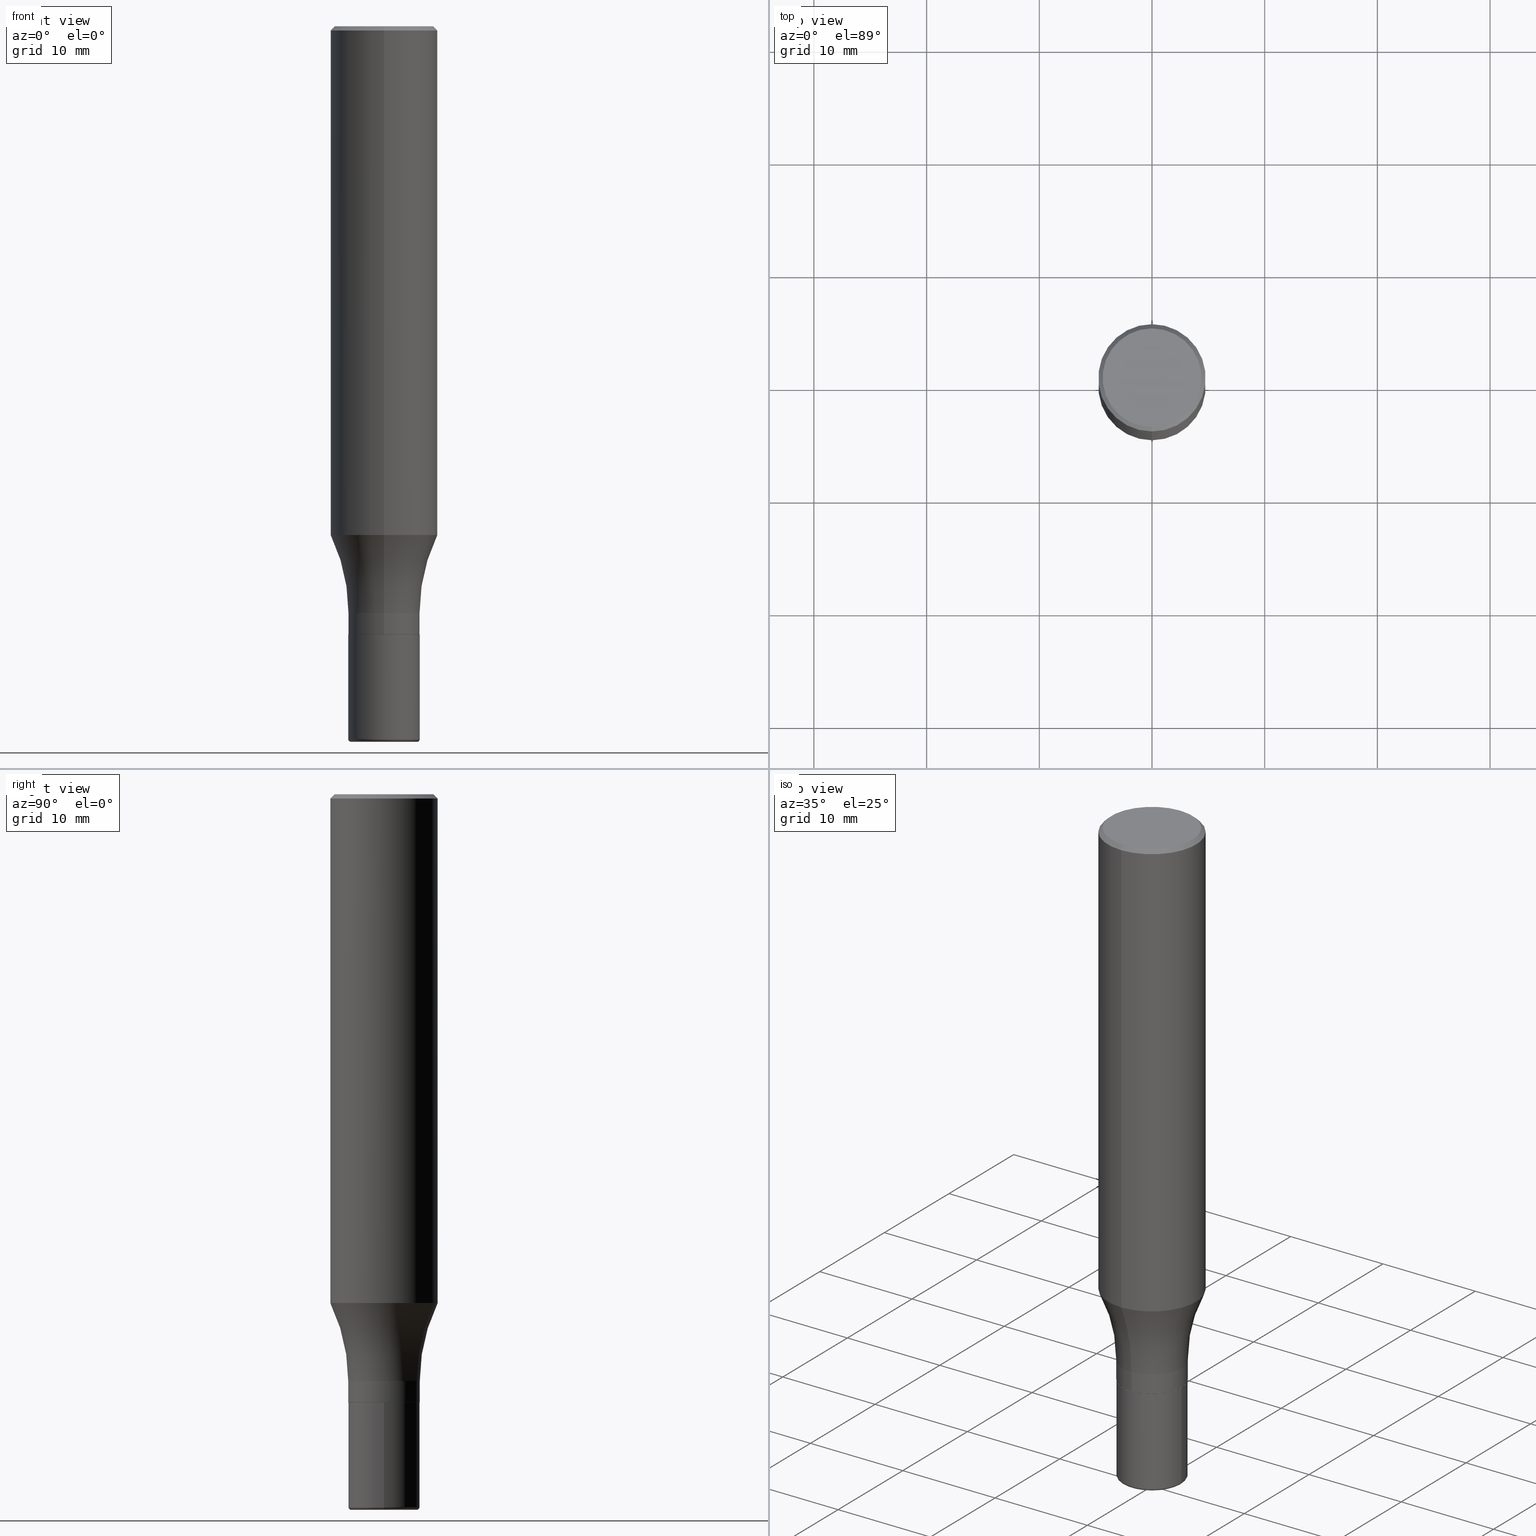
[diagram: canonical four-view strip — front | top / right | iso, engineering-drawing reading convention]
A machine part, canonical four-view strip (front | top / right | iso — engineering-drawing reading convention). The complete STEP part file that produces these views, byte-faithful:
ISO-10303-21;
HEADER;
FILE_DESCRIPTION (( 'STEP AP203' ),
    '1' );
FILE_NAME ('91250.STEP',
    '2024-02-29T19:33:38',
    ( '' ),
    ( '' ),
    'SwSTEP 2.0',
    'SolidWorks 2023',
    '' );
FILE_SCHEMA (( 'CONFIG_CONTROL_DESIGN' ));
ENDSEC;

DATA;
#1 = VERTEX_POINT ( 'NONE', #426 ) ;
#2 = VECTOR ( 'NONE', #404, 39.37007874015748143 ) ;
#3 = PRODUCT_DEFINITION_SHAPE ( 'NONE', 'NONE',  #356 ) ;
#4 = CARTESIAN_POINT ( 'NONE',  ( 4.032559218471161982E-48, -5.754279632434315794E-34, -1.648542422980385758E-19 ) ) ;
#5 = APPROVAL_DATE_TIME ( #90, #375 ) ;
#6 = AXIS2_PLACEMENT_3D ( 'NONE', #61, #66, #96 ) ;
#7 = AXIS2_PLACEMENT_3D ( 'NONE', #492, #250, #330 ) ;
#8 = EDGE_LOOP ( 'NONE', ( #55, #435, #443, #285 ) ) ;
#9 = DIRECTION ( 'NONE',  ( -2.445468806185136597E-29, 3.491481338843145583E-15, 1.000000000000000000 ) ) ;
#10 = DIRECTION ( 'NONE',  ( 6.982962677686265922E-15, 1.000000000000000000, -3.490525662076200979E-15 ) ) ;
#11 = VERTEX_POINT ( 'NONE', #65 ) ;
#12 = VECTOR ( 'NONE', #301, 39.37007874015748854 ) ;
#13 = DIRECTION ( 'NONE',  ( -2.446136151704687579E-29, 3.490525662076200979E-15, 1.000000000000000000 ) ) ;
#14 = PRODUCT_RELATED_PRODUCT_CATEGORY ( 'detail', '', ( #485 ) ) ;
#15 = DIRECTION ( 'NONE',  ( -2.446136151704687579E-29, 3.490525662076200585E-15, 1.000000000000000000 ) ) ;
#16 = CIRCLE ( 'NONE', #6, 0.1874999999999999722 ) ;
#17 = DIRECTION ( 'NONE',  ( -2.446136151704687579E-29, 3.490525662076200585E-15, 1.000000000000000000 ) ) ;
#18 = CARTESIAN_POINT ( 'NONE',  ( 6.089217327400989947E-29, -8.693788533719431716E-15, -2.489999999999999769 ) ) ;
#19 = DIRECTION ( 'NONE',  ( 5.024295867789948556E-15, 0.7071067811868154696, 0.7071067811862793429 ) ) ;
#20 = EDGE_CURVE ( 'NONE', #70, #11, #179, .T. ) ;
#21 = FACE_OUTER_BOUND ( 'NONE', #258, .T. ) ;
#22 = FACE_OUTER_BOUND ( 'NONE', #167, .T. ) ;
#23 = SECURITY_CLASSIFICATION ( '', '', #83 ) ;
#24 = VERTEX_POINT ( 'NONE', #511 ) ;
#25 = AXIS2_PLACEMENT_3D ( 'NONE', #262, #372, #456 ) ;
#26 = DIRECTION ( 'NONE',  ( -2.446136151704687579E-29, 3.490525662076200585E-15, 1.000000000000000000 ) ) ;
#27 = VECTOR ( 'NONE', #13, 39.37007874015748143 ) ;
#28 = ORIENTED_EDGE ( 'NONE', *, *, #20, .T. ) ;
#29 = CARTESIAN_POINT ( 'NONE',  ( -8.728703347107315698E-16, -0.1250000000000074385, -2.124499999999999833 ) ) ;
#30 = EDGE_CURVE ( 'NONE', #201, #24, #352, .T. ) ;
#31 = ORIENTED_EDGE ( 'NONE', *, *, #169, .F. ) ;
#32 = ADVANCED_FACE ( 'NONE', ( #95 ), #473, .F. ) ;
#33 = DIRECTION ( 'NONE',  ( -2.445468806185136597E-29, 3.491481338843145583E-15, 1.000000000000000000 ) ) ;
#34 = ORIENTED_EDGE ( 'NONE', *, *, #290, .F. ) ;
#35 = PERSON_AND_ORGANIZATION ( #118, #73 ) ;
#36 = CIRCLE ( 'NONE', #108, 0.1250000000000000278 ) ;
#37 = TOROIDAL_SURFACE ( 'NONE', #240, 0.7500000000000001110, 0.6250000000000000000 ) ;
#38 = PERSON_AND_ORGANIZATION ( #118, #73 ) ;
#39 = ADVANCED_FACE ( 'NONE', ( #233 ), #363, .T. ) ;
#40 = CARTESIAN_POINT ( 'NONE',  ( 0.000000000000000000, 0.000000000000000000, 0.000000000000000000 ) ) ;
#41 = VECTOR ( 'NONE', #78, 39.37007874015748143 ) ;
#42 = CIRCLE ( 'NONE', #518, 0.1725000000000000144 ) ;
#43 = CC_DESIGN_PERSON_AND_ORGANIZATION_ASSIGNMENT ( #38, #477, ( #485 ) ) ;
#44 = LINE ( 'NONE', #334, #196 ) ;
#45 = PERSON_AND_ORGANIZATION_ROLE ( 'classification_officer' ) ;
#46 = APPROVAL_DATE_TIME ( #261, #110 ) ;
#47 = CIRCLE ( 'NONE', #122, 0.01000000000000008174 ) ;
#48 = DIRECTION ( 'NONE',  ( -6.982962677686265922E-15, -1.000000000000000000, 4.370956789862820361E-15 ) ) ;
#49 = APPLICATION_CONTEXT ( 'configuration controlled 3d designs of mechanical parts and assemblies' ) ;
#50 = DIRECTION ( 'NONE',  ( -6.982962677686266711E-15, -1.000000000000000000, 3.490525662076200979E-15 ) ) ;
#51 = CARTESIAN_POINT ( 'NONE',  ( 8.881784197001765083E-16, 0.1249999999999926170, -2.124500000000001165 ) ) ;
#52 = EDGE_CURVE ( 'NONE', #1, #339, #266, .T. ) ;
#53 = ORIENTED_EDGE ( 'NONE', *, *, #296, .F. ) ;
#54 = CIRCLE ( 'NONE', #269, 0.1250000000000000278 ) ;
#55 = ORIENTED_EDGE ( 'NONE', *, *, #271, .F. ) ;
#56 = DIRECTION ( 'NONE',  ( 6.982962677686265922E-15, 1.000000000000000000, -3.494488891895536035E-15 ) ) ;
#57 = EDGE_CURVE ( 'NONE', #24, #201, #79, .T. ) ;
#58 = VERTEX_POINT ( 'NONE', #218 ) ;
#59 = DIRECTION ( 'NONE',  ( -1.000000000000000000, 6.982962677686265922E-15, -4.876176775795935793E-29 ) ) ;
#60 = DIRECTION ( 'NONE',  ( -6.982962677686265922E-15, -1.000000000000000000, 4.388510833195602794E-15 ) ) ;
#61 = CARTESIAN_POINT ( 'NONE',  ( 4.348175343030721714E-29, -6.204649568454614815E-15, -1.777568816028708421 ) ) ;
#62 = ORIENTED_EDGE ( 'NONE', *, *, #467, .T. ) ;
#63 = CARTESIAN_POINT ( 'NONE',  ( -0.1250000000000000278, 8.881784197001254296E-16, -6.148668862818634329E-30 ) ) ;
#64 = DIRECTION ( 'NONE',  ( -2.445468806185136597E-29, 3.491481338843145583E-15, 1.000000000000000000 ) ) ;
#65 = CARTESIAN_POINT ( 'NONE',  ( 0.1250000000000000833, -9.566658868430215055E-15, -2.489999999999999769 ) ) ;
#66 = DIRECTION ( 'NONE',  ( -2.446136151704687579E-29, 3.490525662076200585E-15, 1.000000000000000000 ) ) ;
#67 = TOROIDAL_SURFACE ( 'NONE', #487, 0.7500000000000001110, 0.6250000000000000000 ) ;
#68 = ORIENTED_EDGE ( 'NONE', *, *, #422, .T. ) ;
#69 = DIRECTION ( 'NONE',  ( 7.105427357601003436E-15, 1.000000000000000000, 0.000000000000000000 ) ) ;
#70 = VERTEX_POINT ( 'NONE', #98 ) ;
#71 = CARTESIAN_POINT ( 'NONE',  ( -1.234889639598875176E-15, -0.1725000000000000144, 6.019508224658465622E-16 ) ) ;
#72 = COORDINATED_UNIVERSAL_TIME_OFFSET ( 5, 0, .BEHIND. ) ;
#73 = ORGANIZATION ( 'UNSPECIFIED', 'UNSPECIFIED', '' ) ;
#74 = AXIS2_PLACEMENT_3D ( 'NONE', #444, #255, #50 ) ;
#75 = ADVANCED_FACE ( 'NONE', ( #450 ), #493, .F. ) ;
#76 = CIRCLE ( 'NONE', #7, 0.1250000000000000278 ) ;
#77 =( CONVERSION_BASED_UNIT ( 'INCH', #328 ) LENGTH_UNIT ( ) NAMED_UNIT ( #369 ) );
#78 = DIRECTION ( 'NONE',  ( -2.446136151704687579E-29, 3.490525662076200979E-15, 1.000000000000000000 ) ) ;
#79 = CIRCLE ( 'NONE', #463, 0.1150000000000000050 ) ;
#80 = ORIENTED_EDGE ( 'NONE', *, *, #57, .T. ) ;
#81 = DIRECTION ( 'NONE',  ( -6.982962677686265133E-15, -1.000000000000000000, 0.000000000000000000 ) ) ;
#82 = DIRECTION ( 'NONE',  ( -6.982962677686266711E-15, -1.000000000000000000, 3.490525662076200191E-15 ) ) ;
#83 = SECURITY_CLASSIFICATION_LEVEL ( 'unclassified' ) ;
#84 = ORIENTED_EDGE ( 'NONE', *, *, #467, .F. ) ;
#85 = ORIENTED_EDGE ( 'NONE', *, *, #486, .T. ) ;
#86 = ORIENTED_EDGE ( 'NONE', *, *, #457, .T. ) ;
#87 = CIRCLE ( 'NONE', #475, 0.01000000000000008174 ) ;
#88 = DIRECTION ( 'NONE',  ( 2.438088387897960049E-29, -3.491481338843145188E-15, -1.000000000000000000 ) ) ;
#89 = CARTESIAN_POINT ( 'NONE',  ( 3.669204227557014781E-31, -5.235788493114276028E-17, -0.01499999999999993179 ) ) ;
#90 = DATE_AND_TIME ( #406, #447 ) ;
#91 = TOROIDAL_SURFACE ( 'NONE', #384, 0.1150000000000000050, 0.01000000000000008174 ) ;
#92 = EDGE_CURVE ( 'NONE', #227, #337, #297, .T. ) ;
#93 = ORIENTED_EDGE ( 'NONE', *, *, #112, .F. ) ;
#94 = ORIENTED_EDGE ( 'NONE', *, *, #399, .T. ) ;
#95 = FACE_OUTER_BOUND ( 'NONE', #449, .T. ) ;
#96 = DIRECTION ( 'NONE',  ( -6.982962677686266711E-15, -1.000000000000000000, 2.913971193241881161E-15 ) ) ;
#97 = ORIENTED_EDGE ( 'NONE', *, *, #466, .T. ) ;
#98 = CARTESIAN_POINT ( 'NONE',  ( -0.1250000000000000833, -7.168414769680431648E-15, -2.489999999999999769 ) ) ;
#99 = AXIS2_PLACEMENT_3D ( 'NONE', #442, #461, #335 ) ;
#100 = CARTESIAN_POINT ( 'NONE',  ( 5.198039322372460616E-29, -7.417367031911926490E-15, -2.125000000000000000 ) ) ;
#101 = AXIS2_PLACEMENT_3D ( 'NONE', #344, #510, #56 ) ;
#102 = VERTEX_POINT ( 'NONE', #140 ) ;
#103 = DIRECTION ( 'NONE',  ( -6.982962677686265922E-15, -1.000000000000000000, 4.388510833195602794E-15 ) ) ;
#104 = EDGE_LOOP ( 'NONE', ( #217, #86, #53, #348 ) ) ;
#105 = DIRECTION ( 'NONE',  ( 1.000000000000000000, -7.105427357601001070E-15, 4.926303804877145846E-29 ) ) ;
#106 = DIRECTION ( 'NONE',  ( -2.445468806185136877E-29, 3.491481338843145188E-15, 1.000000000000000000 ) ) ;
#107 = DIRECTION ( 'NONE',  ( -2.438088387897960049E-29, 3.491481338843145188E-15, 1.000000000000000000 ) ) ;
#108 = AXIS2_PLACEMENT_3D ( 'NONE', #378, #17, #343 ) ;
#109 = DIRECTION ( 'NONE',  ( 1.000000000000000000, -6.982962677686265922E-15, 4.883557194083112901E-29 ) ) ;
#110 = APPROVAL ( #135, 'UNSPECIFIED' ) ;
#111 = APPLICATION_PROTOCOL_DEFINITION ( 'international standard', 'config_control_design', 1994, #49 ) ;
#112 = EDGE_CURVE ( 'NONE', #102, #187, #36, .T. ) ;
#113 = ORIENTED_EDGE ( 'NONE', *, *, #182, .T. ) ;
#114 = ORIENTED_EDGE ( 'NONE', *, *, #296, .T. ) ;
#115 = ADVANCED_FACE ( 'NONE', ( #21 ), #332, .F. ) ;
#116 = COORDINATED_UNIVERSAL_TIME_OFFSET ( 5, 0, .BEHIND. ) ;
#117 = AXIS2_PLACEMENT_3D ( 'NONE', #119, #245, #353 ) ;
#118 = PERSON ( 'UNSPECIFIED', 'UNSPECIFIED', 'UNSPECIFIED', ('UNSPECIFIED'), ('UNSPECIFIED'), ('UNSPECIFIED') ) ;
#119 = CARTESIAN_POINT ( 'NONE',  ( 5.198039322372460616E-29, -7.417367031911926490E-15, -2.125000000000000000 ) ) ;
#120 = AXIS2_PLACEMENT_3D ( 'NONE', #402, #121, #10 ) ;
#121 = DIRECTION ( 'NONE',  ( 2.446136151704687019E-29, -3.490525662076200979E-15, -1.000000000000000000 ) ) ;
#122 = AXIS2_PLACEMENT_3D ( 'NONE', #341, #385, #474 ) ;
#123 = PLANE ( 'NONE',  #117 ) ;
#124 = MECHANICAL_CONTEXT ( 'NONE', #126, 'mechanical' ) ;
#125 = EDGE_CURVE ( 'NONE', #445, #58, #138, .T. ) ;
#126 = APPLICATION_CONTEXT ( 'configuration controlled 3d designs of mechanical parts and assemblies' ) ;
#127 = PERSON_AND_ORGANIZATION ( #118, #73 ) ;
#128 = AXIS2_PLACEMENT_3D ( 'NONE', #211, #397, #81 ) ;
#129 = CARTESIAN_POINT ( 'NONE',  ( -1.309305502066174811E-15, -0.1874999999999999722, 6.544735616392875850E-16 ) ) ;
#130 = APPROVAL_ROLE ( '' ) ;
#131 = CYLINDRICAL_SURFACE ( 'NONE', #74, 0.1874999999999999722 ) ;
#132 = EDGE_CURVE ( 'NONE', #220, #370, #314, .T. ) ;
#133 = ORIENTED_EDGE ( 'NONE', *, *, #400, .F. ) ;
#134 = CARTESIAN_POINT ( 'NONE',  ( -0.1150000000000000050, -7.858594657501527349E-15, -2.500000000000000000 ) ) ;
#135 = APPROVAL_STATUS ( 'not_yet_approved' ) ;
#136 = CLOSED_SHELL ( 'NONE', ( #246, #520, #75, #505, #429, #32 ) ) ;
#137 = VECTOR ( 'NONE', #340, 39.37007874015748854 ) ;
#138 = LINE ( 'NONE', #129, #41 ) ;
#139 = EDGE_CURVE ( 'NONE', #176, #187, #44, .T. ) ;
#140 = CARTESIAN_POINT ( 'NONE',  ( -8.728703347107333448E-16, -0.1250000000000071887, -2.049999999999999822 ) ) ;
#141 = ORIENTED_EDGE ( 'NONE', *, *, #325, .F. ) ;
#142 = CARTESIAN_POINT ( 'NONE',  ( 6.089217327400989947E-29, -8.693788533719431716E-15, -2.489999999999999769 ) ) ;
#143 = DIRECTION ( 'NONE',  ( 1.000000000000000000, -6.982962677686265133E-15, 0.000000000000000000 ) ) ;
#144 = DIRECTION ( 'NONE',  ( -2.446136151704687579E-29, 3.490525662076200585E-15, 1.000000000000000000 ) ) ;
#145 = APPROVAL_PERSON_ORGANIZATION ( #164, #342, #430 ) ;
#146 = EDGE_LOOP ( 'NONE', ( #294, #502, #300, #318 ) ) ;
#147 = AXIS2_PLACEMENT_3D ( 'NONE', #154, #159, #472 ) ;
#148 = LINE ( 'NONE', #63, #438 ) ;
#149 = DIRECTION ( 'NONE',  ( -6.982962677686265922E-15, -1.000000000000000000, 3.490525662076200585E-15 ) ) ;
#150 = CONICAL_SURFACE ( 'NONE', #101, 0.1875000000000000278, 0.7853981633974509435 ) ;
#151 = ORIENTED_EDGE ( 'NONE', *, *, #515, .T. ) ;
#152 = ADVANCED_FACE ( 'NONE', ( #208 ), #180, .T. ) ;
#153 = LINE ( 'NONE', #281, #391 ) ;
#154 = CARTESIAN_POINT ( 'NONE',  ( 0.000000000000000000, 0.000000000000000000, 0.000000000000000000 ) ) ;
#155 = ADVANCED_FACE ( 'NONE', ( #171 ), #131, .T. ) ;
#156 = DIRECTION ( 'NONE',  ( -2.445468806185136597E-29, 3.491481338843145583E-15, 1.000000000000000000 ) ) ;
#157 = CC_DESIGN_PERSON_AND_ORGANIZATION_ASSIGNMENT ( #251, #256, ( #288 ) ) ;
#158 = CC_DESIGN_APPROVAL ( #342, ( #356 ) ) ;
#159 = DIRECTION ( 'NONE',  ( -2.446136151704687579E-29, 3.490525662076200585E-15, 1.000000000000000000 ) ) ;
#160 = AXIS2_PLACEMENT_3D ( 'NONE', #418, #184, #143 ) ;
#161 = CYLINDRICAL_SURFACE ( 'NONE', #204, 0.1250000000000000278 ) ;
#162 = UNCERTAINTY_MEASURE_WITH_UNIT (LENGTH_MEASURE( 1.000000000000000082E-05 ), #77, 'distance_accuracy_value', 'NONE');
#163 = DIRECTION ( 'NONE',  ( 1.000000000000000000, -6.982962677686267499E-15, 4.876176775795935793E-29 ) ) ;
#164 = PERSON_AND_ORGANIZATION ( #118, #73 ) ;
#165 = LOCAL_TIME ( 14, 33, 38.00000000000000000, #72 ) ;
#166 = AXIS2_PLACEMENT_3D ( 'NONE', #462, #506, #60 ) ;
#167 = EDGE_LOOP ( 'NONE', ( #393, #469, #141, #291 ) ) ;
#168 = COORDINATED_UNIVERSAL_TIME_OFFSET ( 5, 0, .BEHIND. ) ;
#169 = EDGE_CURVE ( 'NONE', #317, #407, #175, .T. ) ;
#170 = CIRCLE ( 'NONE', #424, 0.1874999999999999722 ) ;
#171 = FACE_OUTER_BOUND ( 'NONE', #238, .T. ) ;
#172 = PERSON_AND_ORGANIZATION ( #118, #73 ) ;
#173 = ORIENTED_EDGE ( 'NONE', *, *, #293, .T. ) ;
#174 = CARTESIAN_POINT ( 'NONE',  ( 5.196816254296610077E-29, -7.415621769080889546E-15, -2.124500000000000721 ) ) ;
#175 = LINE ( 'NONE', #495, #2 ) ;
#176 = VERTEX_POINT ( 'NONE', #51 ) ;
#177 = CARTESIAN_POINT ( 'NONE',  ( 8.728703347108351078E-16, 0.1249999999999925754, -2.125000000000000888 ) ) ;
#178 = AXIS2_PLACEMENT_3D ( 'NONE', #40, #284, #387 ) ;
#179 = CIRCLE ( 'NONE', #322, 0.1250000000000000833 ) ;
#180 = CONICAL_SURFACE ( 'NONE', #248, 0.1875000000000000278, 0.7853981633974509435 ) ;
#181 = ORIENTED_EDGE ( 'NONE', *, *, #244, .F. ) ;
#182 = EDGE_CURVE ( 'NONE', #11, #227, #305, .T. ) ;
#183 = CARTESIAN_POINT ( 'NONE',  ( 6.089217327400989947E-29, -8.693788533719431716E-15, -2.489999999999999769 ) ) ;
#184 = DIRECTION ( 'NONE',  ( -2.445468806185136597E-29, 3.491481338843145583E-15, 1.000000000000000000 ) ) ;
#185 = ORIENTED_EDGE ( 'NONE', *, *, #182, .F. ) ;
#186 = DIRECTION ( 'NONE',  ( -6.982962677686266711E-15, -1.000000000000000000, 2.913971193241881161E-15 ) ) ;
#187 = VERTEX_POINT ( 'NONE', #216 ) ;
#188 = LOCAL_TIME ( 14, 33, 38.00000000000000000, #168 ) ;
#189 = CARTESIAN_POINT ( 'NONE',  ( 1.256933281983528323E-15, 0.1725000000000000144, -6.022805309504425943E-16 ) ) ;
#190 = ORIENTED_EDGE ( 'NONE', *, *, #325, .T. ) ;
#191 = AXIS2_PLACEMENT_3D ( 'NONE', #500, #405, #496 ) ;
#192 = EDGE_CURVE ( 'NONE', #220, #58, #212, .T. ) ;
#193 = DIRECTION ( 'NONE',  ( -6.982962677686265922E-15, -1.000000000000000000, 4.388510833195602794E-15 ) ) ;
#194 = DIRECTION ( 'NONE',  ( -2.446136151704687579E-29, 3.490525662076200585E-15, 1.000000000000000000 ) ) ;
#195 = CC_DESIGN_PERSON_AND_ORGANIZATION_ASSIGNMENT ( #398, #210, ( #288 ) ) ;
#196 = VECTOR ( 'NONE', #489, 39.37007874015748143 ) ;
#197 = PERSON_AND_ORGANIZATION_ROLE ( 'creator' ) ;
#198 = EDGE_CURVE ( 'NONE', #176, #339, #54, .T. ) ;
#199 = AXIS2_PLACEMENT_3D ( 'NONE', #381, #144, #416 ) ;
#200 = ORIENTED_EDGE ( 'NONE', *, *, #290, .T. ) ;
#201 = VERTEX_POINT ( 'NONE', #134 ) ;
#202 = DATE_AND_TIME ( #287, #401 ) ;
#203 = DIRECTION ( 'NONE',  ( -2.446136151704687579E-29, 3.490525662076200585E-15, 1.000000000000000000 ) ) ;
#204 = AXIS2_PLACEMENT_3D ( 'NONE', #205, #33, #163 ) ;
#205 = CARTESIAN_POINT ( 'NONE',  ( 0.000000000000000000, 0.000000000000000000, 0.000000000000000000 ) ) ;
#206 = EDGE_LOOP ( 'NONE', ( #133, #509 ) ) ;
#207 = CC_DESIGN_PERSON_AND_ORGANIZATION_ASSIGNMENT ( #127, #45, ( #23 ) ) ;
#208 = FACE_OUTER_BOUND ( 'NONE', #437, .T. ) ;
#209 = ADVANCED_FACE ( 'NONE', ( #274 ), #286, .T. ) ;
#210 = PERSON_AND_ORGANIZATION_ROLE ( 'creator' ) ;
#211 = CARTESIAN_POINT ( 'NONE',  ( -5.237222008264649546E-15, -0.7500000000000072164, -2.049999999999997602 ) ) ;
#212 = LINE ( 'NONE', #366, #12 ) ;
#213 = AXIS2_PLACEMENT_3D ( 'NONE', #350, #427, #419 ) ;
#214 = DATE_TIME_ROLE ( 'classification_date' ) ;
#215 = DIRECTION ( 'NONE',  ( -2.446136151704687579E-29, 3.490525662076200585E-15, 1.000000000000000000 ) ) ;
#216 = CARTESIAN_POINT ( 'NONE',  ( 1.110223024625203083E-15, 0.1249999999999928807, -2.050000000000000711 ) ) ;
#217 = ORIENTED_EDGE ( 'NONE', *, *, #400, .T. ) ;
#218 = CARTESIAN_POINT ( 'NONE',  ( -1.286343374582161576E-15, -0.1875000000000000833, -0.01499999999999927607 ) ) ;
#219 = EDGE_CURVE ( 'NONE', #70, #337, #148, .T. ) ;
#220 = VERTEX_POINT ( 'NONE', #71 ) ;
#221 = AXIS2_PLACEMENT_3D ( 'NONE', #4, #298, #82 ) ;
#222 = ORIENTED_EDGE ( 'NONE', *, *, #192, .F. ) ;
#223 = CARTESIAN_POINT ( 'NONE',  ( -1.309305502066131029E-15, -0.1875000000000061340, -1.777568816028707532 ) ) ;
#224 = FACE_OUTER_BOUND ( 'NONE', #273, .T. ) ;
#225 = ADVANCED_FACE ( 'NONE', ( #316 ), #280, .T. ) ;
#226 = ORIENTED_EDGE ( 'NONE', *, *, #410, .T. ) ;
#227 = VERTEX_POINT ( 'NONE', #465 ) ;
#228 = CARTESIAN_POINT ( 'NONE',  ( 6.135555720802942881E-29, -8.697364635517684190E-15, -2.500000000000000000 ) ) ;
#229 = CC_DESIGN_APPROVAL ( #375, ( #288 ) ) ;
#230 = DIRECTION ( 'NONE',  ( 1.000000000000000000, -6.982962677686265922E-15, 0.000000000000000000 ) ) ;
#231 = CYLINDRICAL_SURFACE ( 'NONE', #412, 0.1874999999999999722 ) ;
#232 = CIRCLE ( 'NONE', #213, 0.1875000000000000278 ) ;
#233 = FACE_OUTER_BOUND ( 'NONE', #104, .T. ) ;
#234 = CC_DESIGN_PERSON_AND_ORGANIZATION_ASSIGNMENT ( #35, #197, ( #356 ) ) ;
#235 = CARTESIAN_POINT ( 'NONE',  ( 4.348175343030721714E-29, -6.204649568454614815E-15, -1.777568816028708421 ) ) ;
#236 = CALENDAR_DATE ( 2024, 29, 2 ) ;
#237 = DIRECTION ( 'NONE',  ( -2.446136151704687579E-29, 3.490525662076200585E-15, 1.000000000000000000 ) ) ;
#238 = EDGE_LOOP ( 'NONE', ( #31, #97, #263, #361 ) ) ;
#239 = APPROVAL_STATUS ( 'not_yet_approved' ) ;
#240 = AXIS2_PLACEMENT_3D ( 'NONE', #480, #237, #379 ) ;
#241 = AXIS2_PLACEMENT_3D ( 'NONE', #100, #503, #103 ) ;
#242 = ORIENTED_EDGE ( 'NONE', *, *, #399, .F. ) ;
#243 =( NAMED_UNIT ( * ) SI_UNIT ( $, .STERADIAN. ) SOLID_ANGLE_UNIT ( ) );
#244 = EDGE_CURVE ( 'NONE', #337, #227, #329, .T. ) ;
#245 = DIRECTION ( 'NONE',  ( -2.446136151704687019E-29, 3.490525662076200979E-15, 1.000000000000000000 ) ) ;
#246 = ADVANCED_FACE ( 'NONE', ( #304 ), #432, .T. ) ;
#247 =( GEOMETRIC_REPRESENTATION_CONTEXT ( 3 ) GLOBAL_UNCERTAINTY_ASSIGNED_CONTEXT ( ( #162 ) ) GLOBAL_UNIT_ASSIGNED_CONTEXT ( ( #77, #481, #243 ) ) REPRESENTATION_CONTEXT ( 'NONE', 'WORKASPACE' ) );
#248 = AXIS2_PLACEMENT_3D ( 'NONE', #89, #260, #439 ) ;
#249 = AXIS2_PLACEMENT_3D ( 'NONE', #347, #194, #193 ) ;
#250 = DIRECTION ( 'NONE',  ( -2.446136151704687579E-29, 3.490525662076200585E-15, 1.000000000000000000 ) ) ;
#251 = PERSON_AND_ORGANIZATION ( #118, #73 ) ;
#252 = ORIENTED_EDGE ( 'NONE', *, *, #244, .T. ) ;
#253 = DIRECTION ( 'NONE',  ( -6.982962677686265922E-15, -1.000000000000000000, 4.370956789862820361E-15 ) ) ;
#254 = CC_DESIGN_APPROVAL ( #110, ( #23 ) ) ;
#255 = DIRECTION ( 'NONE',  ( -2.446136151704687579E-29, 3.490525662076200585E-15, 1.000000000000000000 ) ) ;
#256 = PERSON_AND_ORGANIZATION_ROLE ( 'design_supplier' ) ;
#257 = AXIS2_PLACEMENT_3D ( 'NONE', #228, #107, #310 ) ;
#258 = EDGE_LOOP ( 'NONE', ( #62, #409 ) ) ;
#259 = CARTESIAN_POINT ( 'NONE',  ( 0.1250000000000000278, -8.728703347107836346E-16, 6.095220969744921142E-30 ) ) ;
#260 = DIRECTION ( 'NONE',  ( 2.446136151704687579E-29, -3.490525662076200585E-15, -1.000000000000000000 ) ) ;
#261 = DATE_AND_TIME ( #299, #482 ) ;
#262 = CARTESIAN_POINT ( 'NONE',  ( 6.089217327400989947E-29, -8.693788533719431716E-15, -2.489999999999999769 ) ) ;
#263 = ORIENTED_EDGE ( 'NONE', *, *, #125, .T. ) ;
#264 = CARTESIAN_POINT ( 'NONE',  ( 5.014579110994609566E-29, -7.155577607256211456E-15, -2.050000000000000266 ) ) ;
#265 = ORIENTED_EDGE ( 'NONE', *, *, #192, .T. ) ;
#266 = LINE ( 'NONE', #368, #137 ) ;
#267 = DIRECTION ( 'NONE',  ( 1.000000000000000000, -6.982962677686265133E-15, 0.000000000000000000 ) ) ;
#268 = CARTESIAN_POINT ( 'NONE',  ( 1.332267629550230841E-15, 0.1874999999999937550, -1.777568816028709087 ) ) ;
#269 = AXIS2_PLACEMENT_3D ( 'NONE', #174, #215, #48 ) ;
#270 = EDGE_LOOP ( 'NONE', ( #504, #415, #94, #34 ) ) ;
#271 = EDGE_CURVE ( 'NONE', #201, #70, #87, .T. ) ;
#272 = DIRECTION ( 'NONE',  ( -2.446136151704687579E-29, 3.490525662076200585E-15, 1.000000000000000000 ) ) ;
#273 = EDGE_LOOP ( 'NONE', ( #306, #470, #173, #373 ) ) ;
#274 = FACE_OUTER_BOUND ( 'NONE', #270, .T. ) ;
#275 = EDGE_LOOP ( 'NONE', ( #455, #28, #113, #181 ) ) ;
#276 = CARTESIAN_POINT ( 'NONE',  ( -8.728703347107834374E-16, -0.1250000000000000278, 4.363157077595251717E-16 ) ) ;
#277 = APPROVAL_PERSON_ORGANIZATION ( #440, #375, #490 ) ;
#278 = CARTESIAN_POINT ( 'NONE',  ( 4.032559218471161982E-48, -5.754279632434315794E-34, -1.648542422980385758E-19 ) ) ;
#279 = AXIS2_PLACEMENT_3D ( 'NONE', #177, #88, #59 ) ;
#280 = CYLINDRICAL_SURFACE ( 'NONE', #374, 0.1250000000000000278 ) ;
#281 = CARTESIAN_POINT ( 'NONE',  ( 8.846257060213767931E-16, 0.1244999999999926166, -2.125000000000000888 ) ) ;
#282 = CIRCLE ( 'NONE', #241, 0.1245000000000000273 ) ;
#283 = DIRECTION ( 'NONE',  ( -6.982962677686265922E-15, -1.000000000000000000, 3.490525662076200585E-15 ) ) ;
#284 = DIRECTION ( 'NONE',  ( 0.000000000000000000, 0.000000000000000000, 1.000000000000000000 ) ) ;
#285 = ORIENTED_EDGE ( 'NONE', *, *, #20, .F. ) ;
#286 = CYLINDRICAL_SURFACE ( 'NONE', #147, 0.1250000000000000278 ) ;
#287 = CALENDAR_DATE ( 2024, 29, 2 ) ;
#288 = PRODUCT_DEFINITION_FORMATION_WITH_SPECIFIED_SOURCE ( 'ANY', '', #485, .NOT_KNOWN. ) ;
#289 = DIRECTION ( 'NONE',  ( -2.445468806185136597E-29, 3.491481338843145583E-15, 1.000000000000000000 ) ) ;
#290 = EDGE_CURVE ( 'NONE', #187, #102, #377, .T. ) ;
#291 = ORIENTED_EDGE ( 'NONE', *, *, #125, .F. ) ;
#292 = LINE ( 'NONE', #483, #323 ) ;
#293 = EDGE_CURVE ( 'NONE', #445, #102, #508, .T. ) ;
#294 = ORIENTED_EDGE ( 'NONE', *, *, #457, .F. ) ;
#295 = DIRECTION ( 'NONE',  ( -6.982962677686265922E-15, -1.000000000000000000, 3.494488891895536035E-15 ) ) ;
#296 = EDGE_CURVE ( 'NONE', #339, #176, #76, .T. ) ;
#297 = CIRCLE ( 'NONE', #191, 0.1250000000000000000 ) ;
#298 = DIRECTION ( 'NONE',  ( -2.446136151704687579E-29, 3.490525662076200585E-15, 1.000000000000000000 ) ) ;
#299 = CALENDAR_DATE ( 2024, 29, 2 ) ;
#300 = ORIENTED_EDGE ( 'NONE', *, *, #52, .T. ) ;
#301 = DIRECTION ( 'NONE',  ( -4.851104656540975319E-15, -0.7071067811865516806, -0.7071067811865431318 ) ) ;
#302 = APPROVAL_STATUS ( 'not_yet_approved' ) ;
#303 = ADVANCED_FACE ( 'NONE', ( #488 ), #37, .F. ) ;
#304 = FACE_OUTER_BOUND ( 'NONE', #491, .T. ) ;
#305 = LINE ( 'NONE', #259, #451 ) ;
#306 = ORIENTED_EDGE ( 'NONE', *, *, #410, .F. ) ;
#307 = ORIENTED_EDGE ( 'NONE', *, *, #466, .F. ) ;
#308 = DIRECTION ( 'NONE',  ( -6.982962677686266711E-15, -1.000000000000000000, 3.490525662076200979E-15 ) ) ;
#309 = EDGE_LOOP ( 'NONE', ( #403, #252 ) ) ;
#310 = DIRECTION ( 'NONE',  ( 1.000000000000000000, -6.982962677686265922E-15, 4.876176775795935793E-29 ) ) ;
#311 = ADVANCED_FACE ( 'NONE', ( #224 ), #67, .F. ) ;
#312 = ORIENTED_EDGE ( 'NONE', *, *, #57, .F. ) ;
#313 = LINE ( 'NONE', #276, #27 ) ;
#314 = CIRCLE ( 'NONE', #221, 0.1725000000000000144 ) ;
#315 = ORIENTED_EDGE ( 'NONE', *, *, #486, .F. ) ;
#316 = FACE_OUTER_BOUND ( 'NONE', #359, .T. ) ;
#317 = VERTEX_POINT ( 'NONE', #268 ) ;
#318 = ORIENTED_EDGE ( 'NONE', *, *, #198, .F. ) ;
#319 = DIRECTION ( 'NONE',  ( -2.446136151704687579E-29, 3.490525662076200585E-15, 1.000000000000000000 ) ) ;
#320 = DIRECTION ( 'NONE',  ( -2.446136151704687579E-29, 3.490525662076200585E-15, 1.000000000000000000 ) ) ;
#321 = CARTESIAN_POINT ( 'NONE',  ( 0.000000000000000000, 0.000000000000000000, 0.000000000000000000 ) ) ;
#322 = AXIS2_PLACEMENT_3D ( 'NONE', #18, #459, #346 ) ;
#323 = VECTOR ( 'NONE', #390, 39.37007874015748143 ) ;
#324 = FACE_OUTER_BOUND ( 'NONE', #380, .T. ) ;
#325 = EDGE_CURVE ( 'NONE', #58, #407, #232, .T. ) ;
#326 = CC_DESIGN_SECURITY_CLASSIFICATION ( #23, ( #288 ) ) ;
#327 = CIRCLE ( 'NONE', #365, 0.1250000000000000833 ) ;
#328 = LENGTH_MEASURE_WITH_UNIT ( LENGTH_MEASURE( 0.02539999999999999897 ), #394 );
#329 = CIRCLE ( 'NONE', #99, 0.1250000000000000000 ) ;
#330 = DIRECTION ( 'NONE',  ( -6.982962677686265922E-15, -1.000000000000000000, 4.370956789862820361E-15 ) ) ;
#331 = AXIS2_PLACEMENT_3D ( 'NONE', #351, #105, #69 ) ;
#332 = PLANE ( 'NONE',  #120 ) ;
#333 = SHAPE_DEFINITION_REPRESENTATION ( #3, #408 ) ;
#334 = CARTESIAN_POINT ( 'NONE',  ( 8.881784197001254296E-16, 0.1250000000000000278, -4.363157077595251717E-16 ) ) ;
#335 = DIRECTION ( 'NONE',  ( 1.000000000000000000, -6.982962677686270655E-15, 0.000000000000000000 ) ) ;
#336 = AXIS2_PLACEMENT_3D ( 'NONE', #434, #289, #519 ) ;
#337 = VERTEX_POINT ( 'NONE', #512 ) ;
#338 = DIRECTION ( 'NONE',  ( 7.105427357601001859E-15, 1.000000000000000000, -3.491481338843145583E-15 ) ) ;
#339 = VERTEX_POINT ( 'NONE', #29 ) ;
#340 = DIRECTION ( 'NONE',  ( -4.937700262166401865E-15, -0.7071067811868105846, 0.7071067811862842278 ) ) ;
#341 = CARTESIAN_POINT ( 'NONE',  ( 0.1150000000000000050, -9.496829241653351756E-15, -2.489999999999999769 ) ) ;
#342 = APPROVAL ( #239, 'UNSPECIFIED' ) ;
#343 = DIRECTION ( 'NONE',  ( -6.982962677686265922E-15, -1.000000000000000000, 4.370956789862820361E-15 ) ) ;
#344 = CARTESIAN_POINT ( 'NONE',  ( 3.669204227557014781E-31, -5.235788493114276028E-17, -0.01499999999999993179 ) ) ;
#345 = ADVANCED_FACE ( 'NONE', ( #22 ), #231, .T. ) ;
#346 = DIRECTION ( 'NONE',  ( 1.000000000000000000, -6.982962677686265922E-15, 0.000000000000000000 ) ) ;
#347 = CARTESIAN_POINT ( 'NONE',  ( 5.198039322372460616E-29, -7.417367031911926490E-15, -2.125000000000000000 ) ) ;
#348 = ORIENTED_EDGE ( 'NONE', *, *, #52, .F. ) ;
#349 = CONICAL_SURFACE ( 'NONE', #199, 0.1245000000000000273, 0.7853981633978239785 ) ;
#350 = CARTESIAN_POINT ( 'NONE',  ( 3.669204227557014781E-31, -5.235788493114276028E-17, -0.01499999999999993179 ) ) ;
#351 = CARTESIAN_POINT ( 'NONE',  ( 5.329070518200801092E-15, 0.7499999999999930056, -2.050000000000002931 ) ) ;
#352 = CIRCLE ( 'NONE', #160, 0.1150000000000000050 ) ;
#353 = DIRECTION ( 'NONE',  ( -6.982962677686265922E-15, -1.000000000000000000, 3.490525662076200979E-15 ) ) ;
#354 = ADVANCED_FACE ( 'NONE', ( #468 ), #349, .T. ) ;
#355 = ORIENTED_EDGE ( 'NONE', *, *, #92, .F. ) ;
#356 = PRODUCT_DEFINITION ( 'UNKNOWN', '', #288, #413 ) ;
#357 = DATE_TIME_ROLE ( 'creation_date' ) ;
#358 = AXIS2_PLACEMENT_3D ( 'NONE', #431, #203, #295 ) ;
#359 = EDGE_LOOP ( 'NONE', ( #114, #411, #93, #242 ) ) ;
#360 = FACE_OUTER_BOUND ( 'NONE', #275, .T. ) ;
#361 = ORIENTED_EDGE ( 'NONE', *, *, #515, .F. ) ;
#362 = CIRCLE ( 'NONE', #358, 0.1875000000000000278 ) ;
#363 = CONICAL_SURFACE ( 'NONE', #166, 0.1245000000000000273, 0.7853981633978239785 ) ;
#364 = DATE_AND_TIME ( #494, #188 ) ;
#365 = AXIS2_PLACEMENT_3D ( 'NONE', #183, #64, #230 ) ;
#366 = CARTESIAN_POINT ( 'NONE',  ( -1.286343374582161576E-15, -0.1875000000000000833, -0.01499999999999927607 ) ) ;
#367 = EDGE_CURVE ( 'NONE', #24, #11, #47, .T. ) ;
#368 = CARTESIAN_POINT ( 'NONE',  ( -8.693788533718883655E-16, -0.1245000000000074381, -2.124999999999999556 ) ) ;
#369 = DIMENSIONAL_EXPONENTS ( 1.000000000000000000, 0.000000000000000000, 0.000000000000000000, 0.000000000000000000, 0.000000000000000000, 0.000000000000000000, 0.000000000000000000 ) ;
#370 = VERTEX_POINT ( 'NONE', #189 ) ;
#371 = COORDINATED_UNIVERSAL_TIME_OFFSET ( 5, 0, .BEHIND. ) ;
#372 = DIRECTION ( 'NONE',  ( -2.445468806185136597E-29, 3.491481338843145583E-15, 1.000000000000000000 ) ) ;
#373 = ORIENTED_EDGE ( 'NONE', *, *, #112, .T. ) ;
#374 = AXIS2_PLACEMENT_3D ( 'NONE', #425, #319, #283 ) ;
#375 = APPROVAL ( #302, 'UNSPECIFIED' ) ;
#376 = ORIENTED_EDGE ( 'NONE', *, *, #293, .F. ) ;
#377 = CIRCLE ( 'NONE', #499, 0.1250000000000000278 ) ;
#378 = CARTESIAN_POINT ( 'NONE',  ( 5.014579110994609566E-29, -7.155577607256211456E-15, -2.050000000000000266 ) ) ;
#379 = DIRECTION ( 'NONE',  ( -6.982962677686265922E-15, -1.000000000000000000, 3.490525662076200585E-15 ) ) ;
#380 = EDGE_LOOP ( 'NONE', ( #68, #478, #355, #185 ) ) ;
#381 = CARTESIAN_POINT ( 'NONE',  ( 5.198039322372460616E-29, -7.417367031911926490E-15, -2.125000000000000000 ) ) ;
#382 = ORIENTED_EDGE ( 'NONE', *, *, #132, .F. ) ;
#383 = DIRECTION ( 'NONE',  ( -2.446136151704687579E-29, 3.490525662076200585E-15, 1.000000000000000000 ) ) ;
#384 = AXIS2_PLACEMENT_3D ( 'NONE', #142, #156, #109 ) ;
#385 = DIRECTION ( 'NONE',  ( -6.982962677686266711E-15, -1.000000000000000000, 3.491481338843145583E-15 ) ) ;
#386 = CC_DESIGN_DATE_AND_TIME_ASSIGNMENT ( #364, #214, ( #23 ) ) ;
#387 = DIRECTION ( 'NONE',  ( 1.000000000000000000, 0.000000000000000000, 0.000000000000000000 ) ) ;
#388 = DATE_AND_TIME ( #236, #165 ) ;
#389 = EDGE_LOOP ( 'NONE', ( #307, #226, #200, #376 ) ) ;
#390 = DIRECTION ( 'NONE',  ( 4.937700262164560664E-15, 0.7071067811865469066, -0.7071067811865481278 ) ) ;
#391 = VECTOR ( 'NONE', #19, 39.37007874015748854 ) ;
#392 = EDGE_LOOP ( 'NONE', ( #382, #265, #190, #315 ) ) ;
#393 = ORIENTED_EDGE ( 'NONE', *, *, #484, .T. ) ;
#394 =( LENGTH_UNIT ( ) NAMED_UNIT ( * ) SI_UNIT ( $, .METRE. ) );
#395 = CYLINDRICAL_SURFACE ( 'NONE', #336, 0.1250000000000000278 ) ;
#396 = MANIFOLD_SOLID_BREP ( 'Body-Move/Copy2[1]', #136 ) ;
#397 = DIRECTION ( 'NONE',  ( -1.000000000000000000, 6.982962677686265922E-15, -4.883557194083112901E-29 ) ) ;
#398 = PERSON_AND_ORGANIZATION ( #118, #73 ) ;
#399 = EDGE_CURVE ( 'NONE', #339, #102, #313, .T. ) ;
#400 = EDGE_CURVE ( 'NONE', #1, #428, #433, .T. ) ;
#401 = LOCAL_TIME ( 14, 33, 38.00000000000000000, #116 ) ;
#402 = CARTESIAN_POINT ( 'NONE',  ( 1.204561061900881047E-15, 0.1725000000000000144, -6.021981038292935862E-16 ) ) ;
#403 = ORIENTED_EDGE ( 'NONE', *, *, #92, .T. ) ;
#404 = DIRECTION ( 'NONE',  ( -2.446136151704687579E-29, 3.490525662076200979E-15, 1.000000000000000000 ) ) ;
#405 = DIRECTION ( 'NONE',  ( -2.445468806185136597E-29, 3.491481338843145583E-15, 1.000000000000000000 ) ) ;
#406 = CALENDAR_DATE ( 2024, 29, 2 ) ;
#407 = VERTEX_POINT ( 'NONE', #421 ) ;
#408 = ADVANCED_BREP_SHAPE_REPRESENTATION ( '91250', ( #396, #414, #178 ), #247 ) ;
#409 = ORIENTED_EDGE ( 'NONE', *, *, #132, .T. ) ;
#410 = EDGE_CURVE ( 'NONE', #317, #187, #453, .T. ) ;
#411 = ORIENTED_EDGE ( 'NONE', *, *, #139, .T. ) ;
#412 = AXIS2_PLACEMENT_3D ( 'NONE', #321, #383, #308 ) ;
#413 = DESIGN_CONTEXT ( 'detailed design', #49, 'design' ) ;
#414 = MANIFOLD_SOLID_BREP ( 'Body-Move/Copy2[2]', #497 ) ;
#415 = ORIENTED_EDGE ( 'NONE', *, *, #198, .T. ) ;
#416 = DIRECTION ( 'NONE',  ( -6.982962677686265922E-15, -1.000000000000000000, 4.388510833195602794E-15 ) ) ;
#417 = ORIENTED_EDGE ( 'NONE', *, *, #271, .T. ) ;
#418 = CARTESIAN_POINT ( 'NONE',  ( 6.113672015462842613E-29, -8.728703347107864943E-15, -2.500000000000000000 ) ) ;
#419 = DIRECTION ( 'NONE',  ( -6.982962677686265922E-15, -1.000000000000000000, 3.494488891895536035E-15 ) ) ;
#420 = EDGE_CURVE ( 'NONE', #428, #1, #282, .T. ) ;
#421 = CARTESIAN_POINT ( 'NONE',  ( 1.309305502066175600E-15, 0.1874999999999999445, -0.01500000000000058752 ) ) ;
#422 = EDGE_CURVE ( 'NONE', #11, #70, #327, .T. ) ;
#423 = ORIENTED_EDGE ( 'NONE', *, *, #30, .F. ) ;
#424 = AXIS2_PLACEMENT_3D ( 'NONE', #235, #320, #186 ) ;
#425 = CARTESIAN_POINT ( 'NONE',  ( 0.000000000000000000, 0.000000000000000000, 0.000000000000000000 ) ) ;
#426 = CARTESIAN_POINT ( 'NONE',  ( -8.693788533718883655E-16, -0.1245000000000074381, -2.124999999999999556 ) ) ;
#427 = DIRECTION ( 'NONE',  ( -2.446136151704687579E-29, 3.490525662076200585E-15, 1.000000000000000000 ) ) ;
#428 = VERTEX_POINT ( 'NONE', #501 ) ;
#429 = ADVANCED_FACE ( 'NONE', ( #507 ), #91, .T. ) ;
#430 = APPROVAL_ROLE ( '' ) ;
#431 = CARTESIAN_POINT ( 'NONE',  ( 3.669204227557014781E-31, -5.235788493114276028E-17, -0.01499999999999993179 ) ) ;
#432 = TOROIDAL_SURFACE ( 'NONE', #25, 0.1150000000000000050, 0.01000000000000008174 ) ;
#433 = CIRCLE ( 'NONE', #249, 0.1245000000000000273 ) ;
#434 = CARTESIAN_POINT ( 'NONE',  ( 0.000000000000000000, 0.000000000000000000, 0.000000000000000000 ) ) ;
#435 = ORIENTED_EDGE ( 'NONE', *, *, #30, .T. ) ;
#436 = APPROVAL_PERSON_ORGANIZATION ( #172, #110, #130 ) ;
#437 = EDGE_LOOP ( 'NONE', ( #222, #84, #85, #151 ) ) ;
#438 = VECTOR ( 'NONE', #106, 39.37007874015748143 ) ;
#439 = DIRECTION ( 'NONE',  ( 6.982962677686265922E-15, 1.000000000000000000, -3.494488891895536035E-15 ) ) ;
#440 = PERSON_AND_ORGANIZATION ( #118, #73 ) ;
#441 = ADVANCED_FACE ( 'NONE', ( #471 ), #150, .T. ) ;
#442 = CARTESIAN_POINT ( 'NONE',  ( 5.196621213143415268E-29, -7.419397845041685201E-15, -2.125000000000000000 ) ) ;
#443 = ORIENTED_EDGE ( 'NONE', *, *, #367, .T. ) ;
#444 = CARTESIAN_POINT ( 'NONE',  ( 0.000000000000000000, 0.000000000000000000, 0.000000000000000000 ) ) ;
#445 = VERTEX_POINT ( 'NONE', #223 ) ;
#446 = CARTESIAN_POINT ( 'NONE',  ( -0.1150000000000000050, -7.876664387595316565E-15, -2.489999999999999769 ) ) ;
#447 = LOCAL_TIME ( 14, 33, 38.00000000000000000, #371 ) ;
#448 = ORIENTED_EDGE ( 'NONE', *, *, #422, .F. ) ;
#449 = EDGE_LOOP ( 'NONE', ( #312, #423 ) ) ;
#450 = FACE_OUTER_BOUND ( 'NONE', #309, .T. ) ;
#451 = VECTOR ( 'NONE', #454, 39.37007874015748143 ) ;
#452 = COORDINATED_UNIVERSAL_TIME_OFFSET ( 5, 0, .BEHIND. ) ;
#453 = CIRCLE ( 'NONE', #331, 0.6249999999999998890 ) ;
#454 = DIRECTION ( 'NONE',  ( -2.445468806185136877E-29, 3.491481338843145188E-15, 1.000000000000000000 ) ) ;
#455 = ORIENTED_EDGE ( 'NONE', *, *, #219, .F. ) ;
#456 = DIRECTION ( 'NONE',  ( 1.000000000000000000, -6.982962677686265922E-15, 4.883557194083112901E-29 ) ) ;
#457 = EDGE_CURVE ( 'NONE', #428, #176, #153, .T. ) ;
#458 = CARTESIAN_POINT ( 'NONE',  ( 6.113672015462842613E-29, -8.728703347107864943E-15, -2.500000000000000000 ) ) ;
#459 = DIRECTION ( 'NONE',  ( -2.445468806185136597E-29, 3.491481338843145583E-15, 1.000000000000000000 ) ) ;
#460 = DIRECTION ( 'NONE',  ( -6.982962677686266711E-15, -1.000000000000000000, 3.490525662076200191E-15 ) ) ;
#461 = DIRECTION ( 'NONE',  ( -2.445468806185136597E-29, 3.491481338843145583E-15, 1.000000000000000000 ) ) ;
#462 = CARTESIAN_POINT ( 'NONE',  ( 5.198039322372460616E-29, -7.417367031911926490E-15, -2.125000000000000000 ) ) ;
#463 = AXIS2_PLACEMENT_3D ( 'NONE', #458, #9, #267 ) ;
#464 = CARTESIAN_POINT ( 'NONE',  ( 5.013211052679530360E-29, -7.157536744628448622E-15, -2.050000000000000266 ) ) ;
#465 = CARTESIAN_POINT ( 'NONE',  ( 0.1250000000000000000, -8.292268179752468540E-15, -2.125000000000000000 ) ) ;
#466 = EDGE_CURVE ( 'NONE', #317, #445, #170, .T. ) ;
#467 = EDGE_CURVE ( 'NONE', #370, #220, #42, .T. ) ;
#468 = FACE_OUTER_BOUND ( 'NONE', #146, .T. ) ;
#469 = ORIENTED_EDGE ( 'NONE', *, *, #169, .T. ) ;
#470 = ORIENTED_EDGE ( 'NONE', *, *, #484, .F. ) ;
#471 = FACE_OUTER_BOUND ( 'NONE', #392, .T. ) ;
#472 = DIRECTION ( 'NONE',  ( -6.982962677686265922E-15, -1.000000000000000000, 3.490525662076200585E-15 ) ) ;
#473 = PLANE ( 'NONE',  #257 ) ;
#474 = DIRECTION ( 'NONE',  ( 1.000000000000000000, -6.982962677686275388E-15, 0.000000000000000000 ) ) ;
#475 = AXIS2_PLACEMENT_3D ( 'NONE', #446, #338, #498 ) ;
#476 = CC_DESIGN_DATE_AND_TIME_ASSIGNMENT ( #202, #357, ( #356 ) ) ;
#477 = PERSON_AND_ORGANIZATION_ROLE ( 'design_owner' ) ;
#478 = ORIENTED_EDGE ( 'NONE', *, *, #219, .T. ) ;
#479 = ORIENTED_EDGE ( 'NONE', *, *, #367, .F. ) ;
#480 = CARTESIAN_POINT ( 'NONE',  ( 5.013211052679530360E-29, -7.157536744628448622E-15, -2.050000000000000266 ) ) ;
#481 =( NAMED_UNIT ( * ) PLANE_ANGLE_UNIT ( ) SI_UNIT ( $, .RADIAN. ) );
#482 = LOCAL_TIME ( 14, 33, 38.00000000000000000, #452 ) ;
#483 = CARTESIAN_POINT ( 'NONE',  ( 1.309305502066175600E-15, 0.1874999999999999445, -0.01500000000000058752 ) ) ;
#484 = EDGE_CURVE ( 'NONE', #445, #317, #16, .T. ) ;
#485 = PRODUCT ( '91250', '91250', '', ( #124 ) ) ;
#486 = EDGE_CURVE ( 'NONE', #370, #407, #292, .T. ) ;
#487 = AXIS2_PLACEMENT_3D ( 'NONE', #464, #26, #149 ) ;
#488 = FACE_OUTER_BOUND ( 'NONE', #389, .T. ) ;
#489 = DIRECTION ( 'NONE',  ( -2.446136151704687579E-29, 3.490525662076200979E-15, 1.000000000000000000 ) ) ;
#490 = APPROVAL_ROLE ( '' ) ;
#491 = EDGE_LOOP ( 'NONE', ( #80, #417, #448, #479 ) ) ;
#492 = CARTESIAN_POINT ( 'NONE',  ( 5.196816254296610077E-29, -7.415621769080889546E-15, -2.124500000000000721 ) ) ;
#493 = PLANE ( 'NONE',  #279 ) ;
#494 = CALENDAR_DATE ( 2024, 29, 2 ) ;
#495 = CARTESIAN_POINT ( 'NONE',  ( 1.332267629550187454E-15, 0.1874999999999999722, -6.544735616392875850E-16 ) ) ;
#496 = DIRECTION ( 'NONE',  ( 1.000000000000000000, -6.982962677686270655E-15, 0.000000000000000000 ) ) ;
#497 = CLOSED_SHELL ( 'NONE', ( #345, #441, #39, #225, #303, #311, #209, #354, #517, #115, #152, #155 ) ) ;
#498 = DIRECTION ( 'NONE',  ( -1.000000000000000000, 7.105427357600964782E-15, 0.000000000000000000 ) ) ;
#499 = AXIS2_PLACEMENT_3D ( 'NONE', #264, #15, #253 ) ;
#500 = CARTESIAN_POINT ( 'NONE',  ( 5.196621213143415268E-29, -7.419397845041685201E-15, -2.125000000000000000 ) ) ;
#501 = CARTESIAN_POINT ( 'NONE',  ( 8.864020628607770451E-16, 0.1244999999999926166, -2.125000000000000888 ) ) ;
#502 = ORIENTED_EDGE ( 'NONE', *, *, #420, .T. ) ;
#503 = DIRECTION ( 'NONE',  ( -2.446136151704687579E-29, 3.490525662076200585E-15, 1.000000000000000000 ) ) ;
#504 = ORIENTED_EDGE ( 'NONE', *, *, #139, .F. ) ;
#505 = ADVANCED_FACE ( 'NONE', ( #360 ), #161, .T. ) ;
#506 = DIRECTION ( 'NONE',  ( -2.446136151704687579E-29, 3.490525662076200585E-15, 1.000000000000000000 ) ) ;
#507 = FACE_OUTER_BOUND ( 'NONE', #8, .T. ) ;
#508 = CIRCLE ( 'NONE', #128, 0.6249999999999998890 ) ;
#509 = ORIENTED_EDGE ( 'NONE', *, *, #420, .F. ) ;
#510 = DIRECTION ( 'NONE',  ( 2.446136151704687579E-29, -3.490525662076200585E-15, -1.000000000000000000 ) ) ;
#511 = CARTESIAN_POINT ( 'NONE',  ( 0.1150000000000000050, -9.531744055041784983E-15, -2.500000000000000000 ) ) ;
#512 = CARTESIAN_POINT ( 'NONE',  ( -0.1250000000000000000, -7.168414769680433226E-15, -2.125000000000000000 ) ) ;
#513 = APPROVAL_DATE_TIME ( #388, #342 ) ;
#514 = APPLICATION_PROTOCOL_DEFINITION ( 'international standard', 'config_control_design', 1994, #126 ) ;
#515 = EDGE_CURVE ( 'NONE', #407, #58, #362, .T. ) ;
#516 = FACE_OUTER_BOUND ( 'NONE', #206, .T. ) ;
#517 = ADVANCED_FACE ( 'NONE', ( #516 ), #123, .F. ) ;
#518 = AXIS2_PLACEMENT_3D ( 'NONE', #278, #272, #460 ) ;
#519 = DIRECTION ( 'NONE',  ( 1.000000000000000000, -6.982962677686267499E-15, 4.876176775795935793E-29 ) ) ;
#520 = ADVANCED_FACE ( 'NONE', ( #324 ), #395, .T. ) ;
ENDSEC;
END-ISO-10303-21;
